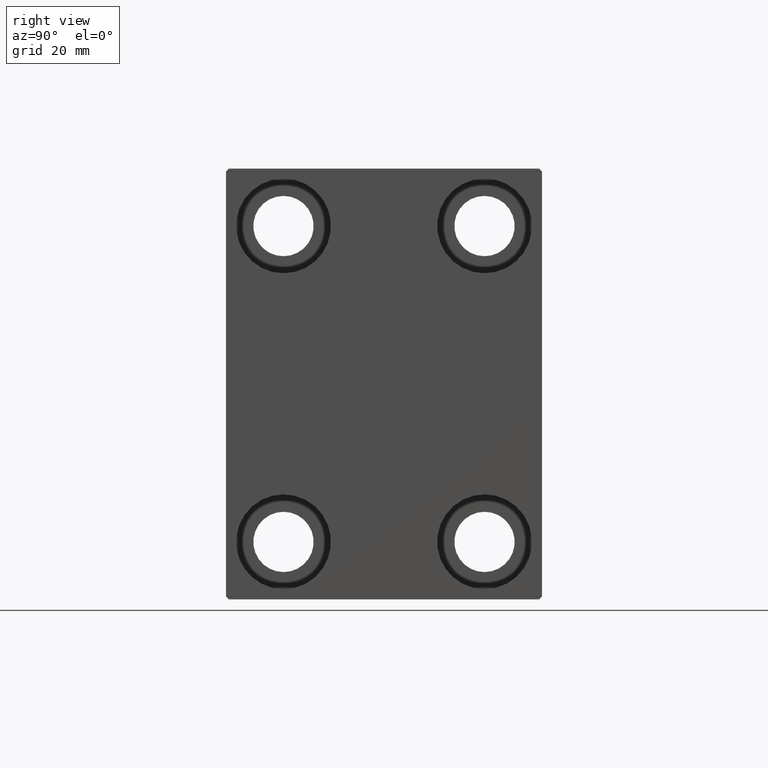
[diagram: clean part render]
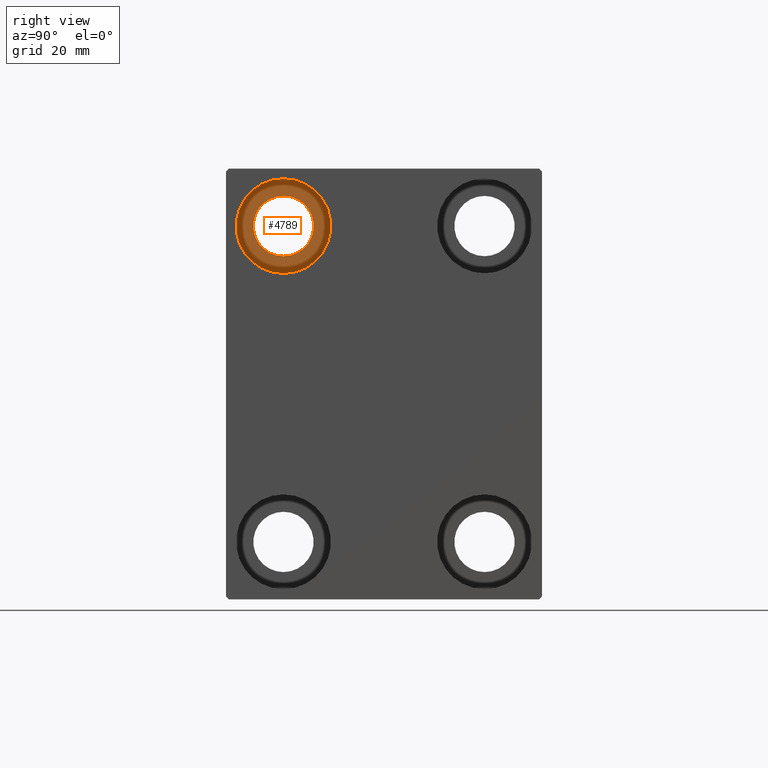
[diagram: same view with one face highlighted and labeled with its STEP entity id]
A machine part, right view. The second image highlights one B-rep face of the part: STEP entity #4789.
In plain terms, the highlighted planar face has unit normal (1, 0, 0).
Its self-contained STEP definition (entity closure, byte-faithful):
#178 = CARTESIAN_POINT ( 'NONE',  ( 64.00000000000000000, -17.49999999999999645, 32.74999999999999289 ) ) ;
#2822 = PLANE ( 'NONE',  #8154 ) ;
#4789 = ADVANCED_FACE ( 'NONE', ( #33972, #43302 ), #2822, .T. ) ;
#7848 = VERTEX_POINT ( 'NONE', #22289 ) ;
#8154 = AXIS2_PLACEMENT_3D ( 'NONE', #9484, #27288, #19756 ) ;
#8977 = EDGE_CURVE ( 'NONE', #34081, #27132, #14652, .T. ) ;
#9484 = CARTESIAN_POINT ( 'NONE',  ( 64.00000000000000000, 0.000000000000000000, 0.000000000000000000 ) ) ;
#11021 = DIRECTION ( 'NONE',  ( -1.000000000000000000, -0.000000000000000000, -0.000000000000000000 ) ) ;
#11861 = DIRECTION ( 'NONE',  ( 0.000000000000000000, 0.000000000000000000, 1.000000000000000000 ) ) ;
#14256 = AXIS2_PLACEMENT_3D ( 'NONE', #30138, #25908, #19479 ) ;
#14331 = DIRECTION ( 'NONE',  ( -1.000000000000000000, -0.000000000000000000, -0.000000000000000000 ) ) ;
#14652 = CIRCLE ( 'NONE', #39493, 5.249999999999997335 ) ;
#14834 = CARTESIAN_POINT ( 'NONE',  ( 64.00000000000000000, -17.49999999999999645, 22.25000000000000000 ) ) ;
#14981 = ORIENTED_EDGE ( 'NONE', *, *, #33061, .F. ) ;
#18271 = CARTESIAN_POINT ( 'NONE',  ( 64.00000000000000000, -17.49999999999999645, 27.49999999999999645 ) ) ;
#19479 = DIRECTION ( 'NONE',  ( 0.000000000000000000, 0.000000000000000000, -1.000000000000000000 ) ) ;
#19756 = DIRECTION ( 'NONE',  ( 0.000000000000000000, 0.000000000000000000, 1.000000000000000000 ) ) ;
#22289 = CARTESIAN_POINT ( 'NONE',  ( 64.00000000000000000, -17.49999999999999645, 19.25000000000000000 ) ) ;
#22732 = CIRCLE ( 'NONE', #28420, 8.249999999999992895 ) ;
#22766 = CIRCLE ( 'NONE', #14256, 5.249999999999997335 ) ;
#24731 = EDGE_LOOP ( 'NONE', ( #14981, #25237 ) ) ;
#25005 = CARTESIAN_POINT ( 'NONE',  ( 64.00000000000000000, -17.49999999999999645, 27.49999999999999645 ) ) ;
#25237 = ORIENTED_EDGE ( 'NONE', *, *, #35972, .F. ) ;
#25908 = DIRECTION ( 'NONE',  ( -1.000000000000000000, -0.000000000000000000, -0.000000000000000000 ) ) ;
#27132 = VERTEX_POINT ( 'NONE', #178 ) ;
#27288 = DIRECTION ( 'NONE',  ( 1.000000000000000000, 0.000000000000000000, -0.000000000000000000 ) ) ;
#28166 = CARTESIAN_POINT ( 'NONE',  ( 64.00000000000000000, -17.49999999999999645, 27.49999999999999645 ) ) ;
#28420 = AXIS2_PLACEMENT_3D ( 'NONE', #25005, #14331, #11861 ) ;
#29356 = EDGE_LOOP ( 'NONE', ( #42986, #42250 ) ) ;
#30138 = CARTESIAN_POINT ( 'NONE',  ( 64.00000000000000000, -17.49999999999999645, 27.49999999999999645 ) ) ;
#30553 = AXIS2_PLACEMENT_3D ( 'NONE', #28166, #11021, #41287 ) ;
#33061 = EDGE_CURVE ( 'NONE', #7848, #33648, #22732, .T. ) ;
#33648 = VERTEX_POINT ( 'NONE', #40477 ) ;
#33972 = FACE_OUTER_BOUND ( 'NONE', #24731, .T. ) ;
#34081 = VERTEX_POINT ( 'NONE', #14834 ) ;
#35972 = EDGE_CURVE ( 'NONE', #33648, #7848, #37653, .T. ) ;
#37653 = CIRCLE ( 'NONE', #30553, 8.249999999999992895 ) ;
#37918 = EDGE_CURVE ( 'NONE', #27132, #34081, #22766, .T. ) ;
#39493 = AXIS2_PLACEMENT_3D ( 'NONE', #18271, #42261, #42050 ) ;
#40477 = CARTESIAN_POINT ( 'NONE',  ( 64.00000000000000000, -17.49999999999999645, 35.74999999999999289 ) ) ;
#41287 = DIRECTION ( 'NONE',  ( 0.000000000000000000, 0.000000000000000000, 1.000000000000000000 ) ) ;
#42050 = DIRECTION ( 'NONE',  ( 0.000000000000000000, 0.000000000000000000, -1.000000000000000000 ) ) ;
#42250 = ORIENTED_EDGE ( 'NONE', *, *, #8977, .T. ) ;
#42261 = DIRECTION ( 'NONE',  ( -1.000000000000000000, -0.000000000000000000, -0.000000000000000000 ) ) ;
#42986 = ORIENTED_EDGE ( 'NONE', *, *, #37918, .T. ) ;
#43302 = FACE_BOUND ( 'NONE', #29356, .T. ) ;